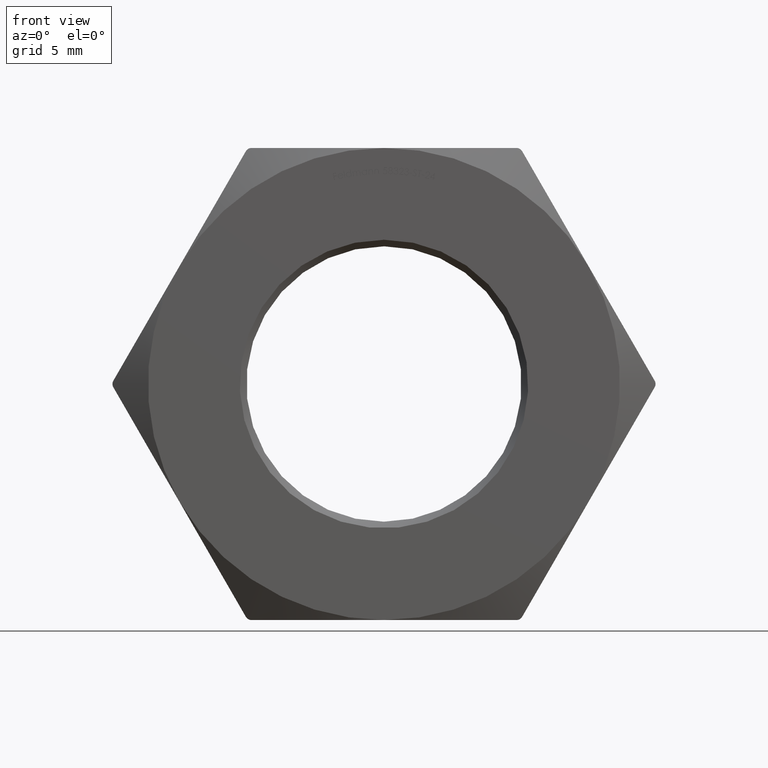
[diagram: clean part render]
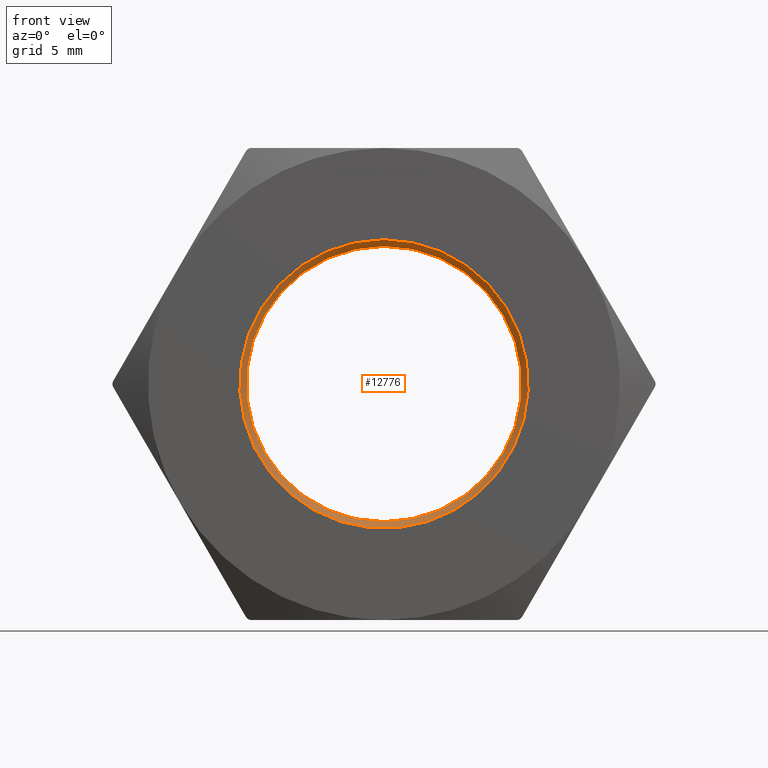
[diagram: same view with one face highlighted and labeled with its STEP entity id]
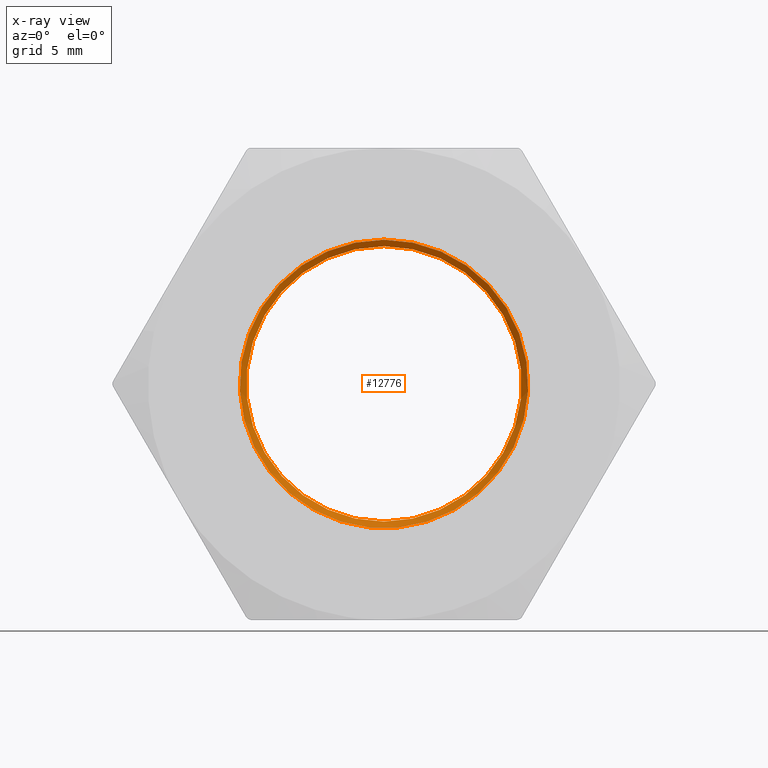
[diagram: x-ray of the same camera — body ghosted, the highlighted face saturated]
A machine part, front view. The second image highlights one B-rep face of the part: STEP entity #12776.
The next image is the same camera in x-ray: the body ghosted, the highlighted face saturated — about 0% of this face is hidden behind the body in this view.
In plain terms, the highlighted conical surface has half-angle 45 deg.
Its self-contained STEP definition (entity closure, byte-faithful):
#2343 = AXIS2_PLACEMENT_3D ( 'NONE', #15003, #8849, #9002 ) ;
#2394 = CARTESIAN_POINT ( 'NONE',  ( 0.000000000000000000, -4.500000000000007994, 10.49999999999999822 ) ) ;
#2538 = CIRCLE ( 'NONE', #14478, 10.49999999999999822 ) ;
#2651 = CIRCLE ( 'NONE', #10763, 10.99999999999998934 ) ;
#3991 = EDGE_CURVE ( 'NONE', #9877, #9877, #2538, .T. ) ;
#5206 = FACE_OUTER_BOUND ( 'NONE', #7718, .T. ) ;
#5607 = ORIENTED_EDGE ( 'NONE', *, *, #9295, .F. ) ;
#7162 = CARTESIAN_POINT ( 'NONE',  ( 0.000000000000000000, -4.500000000000007994, 0.000000000000000000 ) ) ;
#7718 = EDGE_LOOP ( 'NONE', ( #5607 ) ) ;
#8849 = DIRECTION ( 'NONE',  ( -0.000000000000000000, -1.000000000000000000, -0.000000000000000000 ) ) ;
#9002 = DIRECTION ( 'NONE',  ( 0.000000000000000000, 0.000000000000000000, -1.000000000000000000 ) ) ;
#9295 = EDGE_CURVE ( 'NONE', #12358, #12358, #2651, .T. ) ;
#9877 = VERTEX_POINT ( 'NONE', #2394 ) ;
#10473 = CONICAL_SURFACE ( 'NONE', #2343, 10.99999999999998934, 0.7853981633974466137 ) ;
#10735 = ORIENTED_EDGE ( 'NONE', *, *, #3991, .F. ) ;
#10763 = AXIS2_PLACEMENT_3D ( 'NONE', #12210, #12264, #10831 ) ;
#10831 = DIRECTION ( 'NONE',  ( 0.000000000000000000, 0.000000000000000000, 1.000000000000000000 ) ) ;
#11078 = CARTESIAN_POINT ( 'NONE',  ( 0.000000000000000000, -5.000000000000000000, 10.99999999999998934 ) ) ;
#12210 = CARTESIAN_POINT ( 'NONE',  ( 0.000000000000000000, -5.000000000000000000, 0.000000000000000000 ) ) ;
#12264 = DIRECTION ( 'NONE',  ( 0.000000000000000000, 1.000000000000000000, 0.000000000000000000 ) ) ;
#12358 = VERTEX_POINT ( 'NONE', #11078 ) ;
#12776 = ADVANCED_FACE ( 'NONE', ( #15361, #5206 ), #10473, .F. ) ;
#13119 = DIRECTION ( 'NONE',  ( -0.000000000000000000, -1.000000000000000000, -0.000000000000000000 ) ) ;
#13362 = EDGE_LOOP ( 'NONE', ( #10735 ) ) ;
#14322 = DIRECTION ( 'NONE',  ( 0.000000000000000000, 0.000000000000000000, 1.000000000000000000 ) ) ;
#14478 = AXIS2_PLACEMENT_3D ( 'NONE', #7162, #13119, #14322 ) ;
#15003 = CARTESIAN_POINT ( 'NONE',  ( 0.000000000000000000, -5.000000000000000000, 0.000000000000000000 ) ) ;
#15361 = FACE_BOUND ( 'NONE', #13362, .T. ) ;